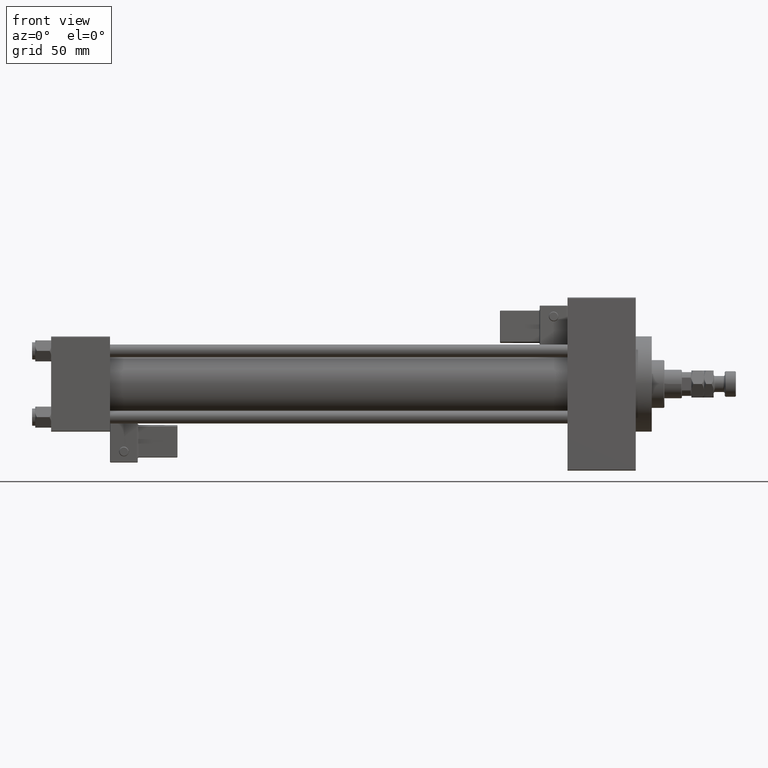
[diagram: clean part render]
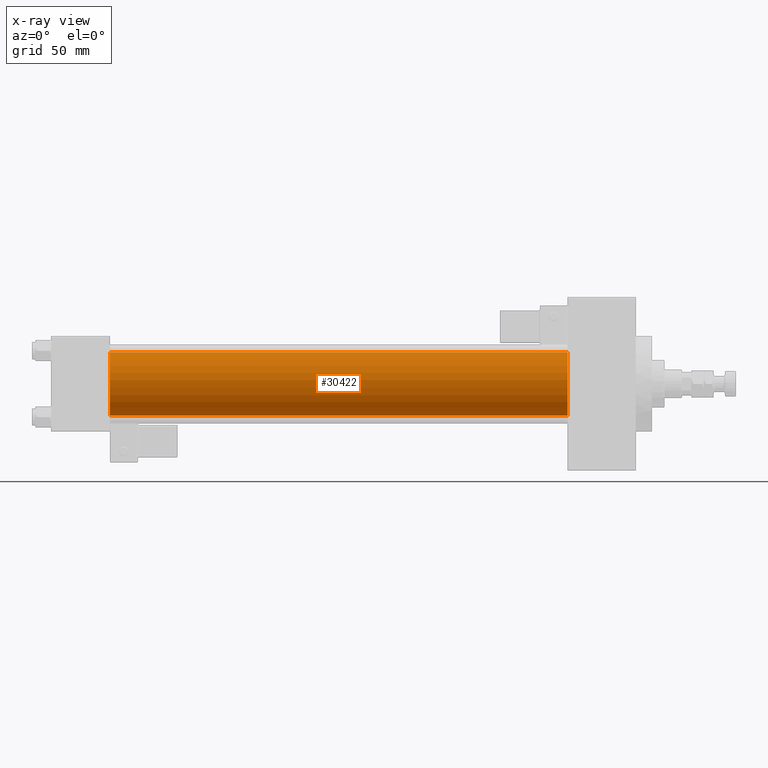
[diagram: x-ray — body ghosted, one internal face saturated and labeled with its STEP entity id]
A machine part, front view, then the same camera in x-ray: the body is ghosted and one INTERNAL B-rep face — a face not visible from any outside direction — is saturated and labeled: STEP entity #30422.
In plain terms, the highlighted cylindrical surface (edge-blend (fillet) strip) has radius 20 mm, axis along (-1, -0, -0).
Its self-contained STEP definition (entity closure, byte-faithful):
#1131 = CIRCLE ( 'NONE', #30153, 20.00000000000000000 ) ;
#1905 = LINE ( 'NONE', #32791, #4385 ) ;
#4385 = VECTOR ( 'NONE', #9686, 1000.000000000000000 ) ;
#6925 = ORIENTED_EDGE ( 'NONE', *, *, #15559, .T. ) ;
#7825 = VERTEX_POINT ( 'NONE', #13375 ) ;
#8380 = DIRECTION ( 'NONE',  ( 0.000000000000000000, 0.000000000000000000, 1.000000000000000000 ) ) ;
#9686 = DIRECTION ( 'NONE',  ( -1.000000000000000000, -0.000000000000000000, -0.000000000000000000 ) ) ;
#13071 = CARTESIAN_POINT ( 'NONE',  ( 324.9999999999999432, -2.602085213965210642E-15, 20.00000000000000000 ) ) ;
#13375 = CARTESIAN_POINT ( 'NONE',  ( 37.00000000000000000, -2.602085213965210642E-15, 20.00000000000000000 ) ) ;
#14416 = LINE ( 'NONE', #50213, #41677 ) ;
#15337 = CARTESIAN_POINT ( 'NONE',  ( 324.9999999999999432, -2.602085213965210642E-15, 0.000000000000000000 ) ) ;
#15559 = EDGE_CURVE ( 'NONE', #48462, #35141, #14416, .T. ) ;
#15812 = EDGE_CURVE ( 'NONE', #46599, #7825, #1905, .T. ) ;
#15848 = DIRECTION ( 'NONE',  ( 0.000000000000000000, 0.000000000000000000, -1.000000000000000000 ) ) ;
#16694 = AXIS2_PLACEMENT_3D ( 'NONE', #15337, #43375, #15848 ) ;
#18415 = CARTESIAN_POINT ( 'NONE',  ( 324.9999999999999432, -1.527916156705042519E-16, -20.00000000000000000 ) ) ;
#20034 = CIRCLE ( 'NONE', #16694, 20.00000000000000000 ) ;
#20543 = CYLINDRICAL_SURFACE ( 'NONE', #29999, 20.00000000000000000 ) ;
#23679 = CARTESIAN_POINT ( 'NONE',  ( 324.9999999999999432, -2.602085213965210642E-15, 0.000000000000000000 ) ) ;
#25421 = ORIENTED_EDGE ( 'NONE', *, *, #37881, .F. ) ;
#29126 = CARTESIAN_POINT ( 'NONE',  ( 37.00000000000000000, -2.602085213965210642E-15, 0.000000000000000000 ) ) ;
#29835 = EDGE_CURVE ( 'NONE', #46599, #48462, #20034, .T. ) ;
#29999 = AXIS2_PLACEMENT_3D ( 'NONE', #23679, #44202, #8380 ) ;
#30153 = AXIS2_PLACEMENT_3D ( 'NONE', #29126, #44964, #41068 ) ;
#30422 = ADVANCED_FACE ( 'NONE', ( #43947 ), #20543, .F. ) ;
#32791 = CARTESIAN_POINT ( 'NONE',  ( 324.9999999999999432, -2.602085213965210642E-15, 20.00000000000000000 ) ) ;
#33045 = ORIENTED_EDGE ( 'NONE', *, *, #15812, .F. ) ;
#33357 = ORIENTED_EDGE ( 'NONE', *, *, #29835, .T. ) ;
#35141 = VERTEX_POINT ( 'NONE', #44978 ) ;
#37881 = EDGE_CURVE ( 'NONE', #7825, #35141, #1131, .T. ) ;
#41068 = DIRECTION ( 'NONE',  ( 0.000000000000000000, 0.000000000000000000, -1.000000000000000000 ) ) ;
#41677 = VECTOR ( 'NONE', #46860, 1000.000000000000000 ) ;
#43375 = DIRECTION ( 'NONE',  ( 1.000000000000000000, 0.000000000000000000, 0.000000000000000000 ) ) ;
#43947 = FACE_OUTER_BOUND ( 'NONE', #46627, .T. ) ;
#44202 = DIRECTION ( 'NONE',  ( -1.000000000000000000, -0.000000000000000000, -0.000000000000000000 ) ) ;
#44964 = DIRECTION ( 'NONE',  ( 1.000000000000000000, 0.000000000000000000, 0.000000000000000000 ) ) ;
#44978 = CARTESIAN_POINT ( 'NONE',  ( 37.00000000000000000, -1.527916156705042519E-16, -20.00000000000000000 ) ) ;
#46599 = VERTEX_POINT ( 'NONE', #13071 ) ;
#46627 = EDGE_LOOP ( 'NONE', ( #33357, #6925, #25421, #33045 ) ) ;
#46860 = DIRECTION ( 'NONE',  ( -1.000000000000000000, -0.000000000000000000, -0.000000000000000000 ) ) ;
#48462 = VERTEX_POINT ( 'NONE', #18415 ) ;
#50213 = CARTESIAN_POINT ( 'NONE',  ( 324.9999999999999432, -1.527916156705042519E-16, -20.00000000000000000 ) ) ;